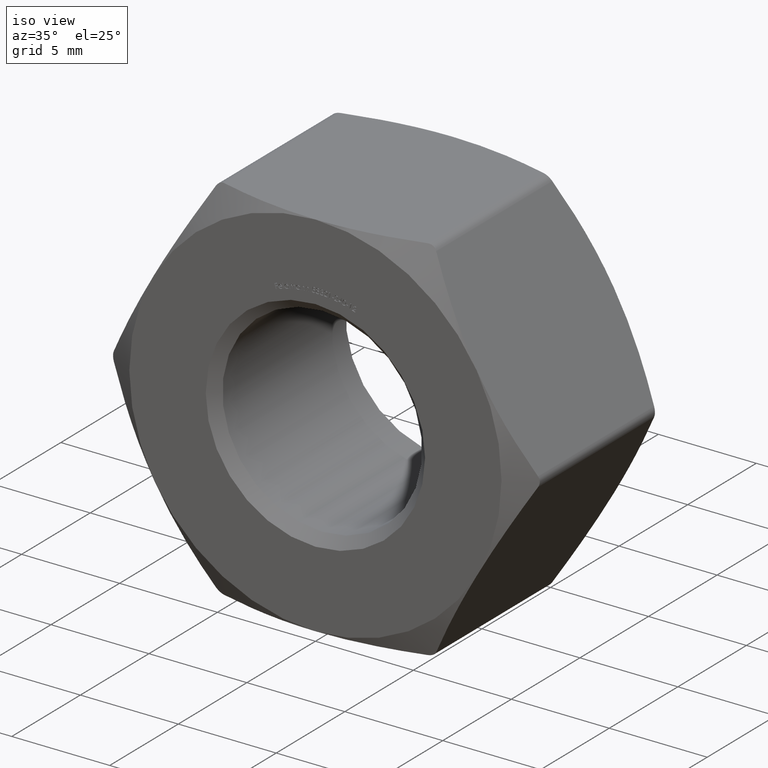
[diagram: clean part render]
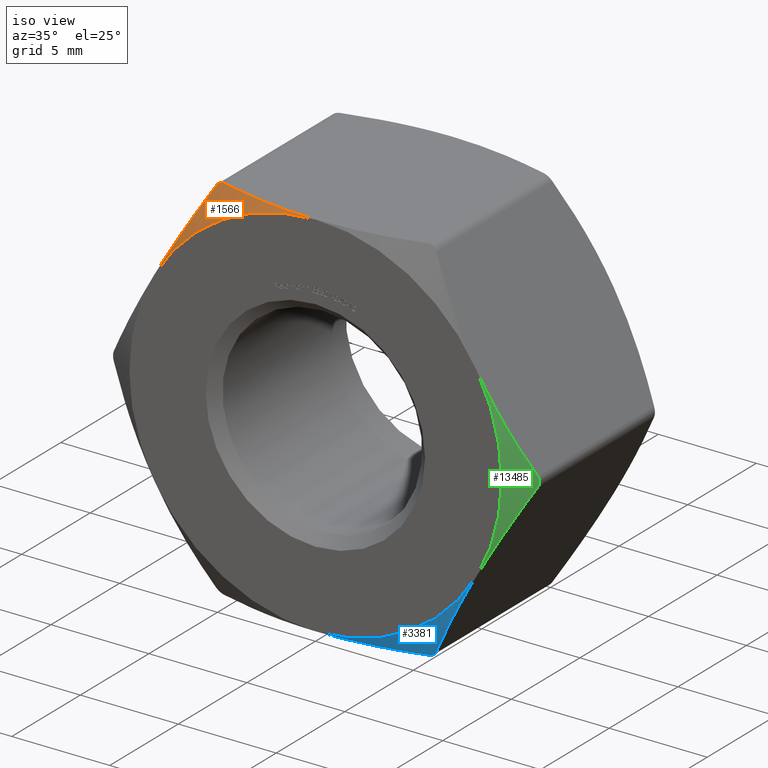
[diagram: same view with three faces highlighted in distinct colors, each labeled with its STEP entity id]
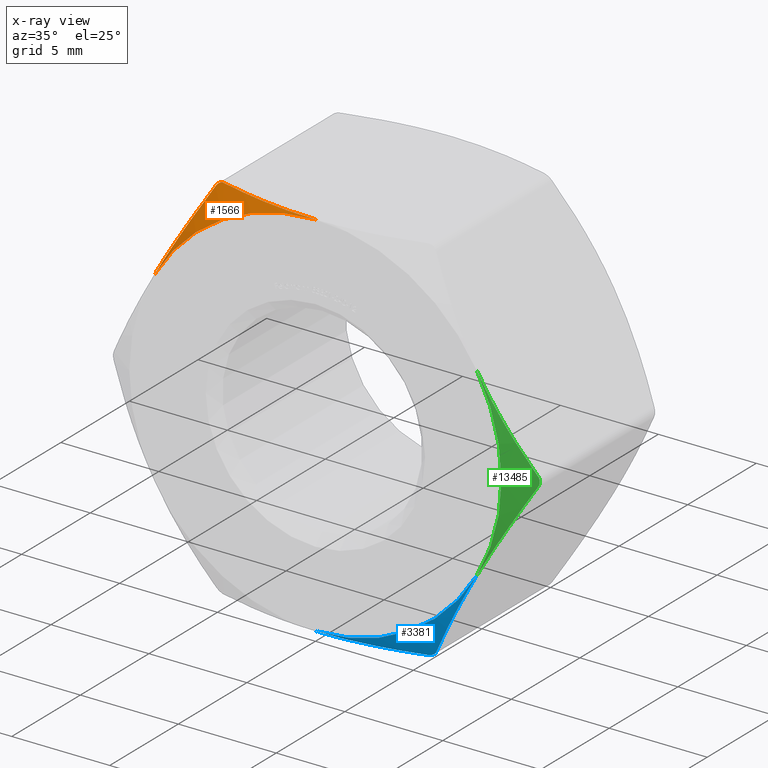
[diagram: x-ray of the same camera — body ghosted, the three highlighted faces saturated]
A machine part, iso view with three faces highlighted in distinct colors.
The next image is the same camera in x-ray (body ghosted, the three faces saturated) — at least one of them is partly hidden behind the body in this view.
Their STEP definitions:

[orange] entity #1566 — the highlighted conical surface has half-angle 60 deg.
#214 = CARTESIAN_POINT ( 'NONE',  ( -1.748548221912491700, -4.928786257910812400, 9.499999999999996400 ) ) ;
#232 = CARTESIAN_POINT ( 'NONE',  ( -0.8769579191401485300, -5.000000000000000000, 9.499999999999998200 ) ) ;
#449 = CARTESIAN_POINT ( 'NONE',  ( 5.178338499514328600E-017, -5.000000000000000000, 9.499999999999998200 ) ) ;
#1535 = CARTESIAN_POINT ( 'NONE',  ( -8.007001594286084200, -5.000000000000008900, 5.131466422411501900 ) ) ;
#1566 = ADVANCED_FACE ( 'NONE', ( #11044 ), #10679, .T. ) ;
#1750 = EDGE_CURVE ( 'NONE', #9294, #11237, #11599, .T. ) ;
#1920 = CARTESIAN_POINT ( 'NONE',  ( -5.196152422707283900, -4.233161112797591700, 9.499999999999998200 ) ) ;
#2402 = AXIS2_PLACEMENT_3D ( 'NONE', #6383, #8884, #12578 ) ;
#3521 = ORIENTED_EDGE ( 'NONE', *, *, #13459, .F. ) ;
#4820 = CARTESIAN_POINT ( 'NONE',  ( -5.629165124598850800, -4.233161112797772900, 9.249999999999998200 ) ) ;
#4986 = CARTESIAN_POINT ( 'NONE',  ( -4.348666152671947700, -4.467960792442869300, 9.499999999999998200 ) ) ;
#5289 = CARTESIAN_POINT ( 'NONE',  ( -8.227241335952166800, -5.000000000000000000, 4.749999999999998200 ) ) ;
#6383 = CARTESIAN_POINT ( 'NONE',  ( 5.178338499514328600E-017, -5.000000000000000000, 1.704137622190297200E-016 ) ) ;
#6407 = CARTESIAN_POINT ( 'NONE',  ( -6.053412761787225100, -4.468240341392040600, 8.515181537398685700 ) ) ;
#6511 = B_SPLINE_CURVE_WITH_KNOTS ( 'NONE', 3,
 ( #13488, #4986, #13431, #214, #232, #11094 ),
 .UNSPECIFIED., .F., .F.,
 ( 4, 2, 4 ),
 ( 0.01008431317107068100, 0.01270932973017897500, 0.01533434628928726800 ),
 .UNSPECIFIED. ) ;
#6653 = ORIENTED_EDGE ( 'NONE', *, *, #15265, .T. ) ;
#7194 = B_SPLINE_CURVE_WITH_KNOTS ( 'NONE', 3,
 ( #1920, #15194, #12824, #12771, #14010, #8200 ),
 .UNSPECIFIED., .F., .F.,
 ( 4, 2, 4 ),
 ( 6.327872022629088300E-016, 0.0002637781458277947700, 0.0005275562916549566800 ),
 .UNSPECIFIED. ) ;
#7322 = EDGE_LOOP ( 'NONE', ( #7391, #6653, #3521, #12066 ) ) ;
#7391 = ORIENTED_EDGE ( 'NONE', *, *, #8437, .F. ) ;
#7807 = CARTESIAN_POINT ( 'NONE',  ( -7.785726958241924400, -4.982053147081708200, 5.514725334466294100 ) ) ;
#8062 = AXIS2_PLACEMENT_3D ( 'NONE', #11844, #9518, #12109 ) ;
#8086 = B_SPLINE_CURVE_WITH_KNOTS ( 'NONE', 3,
 ( #13534, #1535, #7807, #13642, #14910, #12549, #6407, #13748 ),
 .UNSPECIFIED., .F., .F.,
 ( 4, 2, 2, 4 ),
 ( 0.005549985383765654100, 0.006857997360578059000, 0.008166009337390464600, 0.01078203329101527400 ),
 .UNSPECIFIED. ) ;
#8200 = CARTESIAN_POINT ( 'NONE',  ( -5.629165124598850800, -4.233161112797772900, 9.249999999999998200 ) ) ;
#8437 = EDGE_CURVE ( 'NONE', #15081, #9294, #6511, .T. ) ;
#8884 = DIRECTION ( 'NONE',  ( -0.0000000000000000000, -1.000000000000000000, -0.0000000000000000000 ) ) ;
#9294 = VERTEX_POINT ( 'NONE', #449 ) ;
#9518 = DIRECTION ( 'NONE',  ( -1.035667699902865700E-017, 1.000000000000000000, -0.0000000000000000000 ) ) ;
#9795 = VERTEX_POINT ( 'NONE', #4820 ) ;
#10011 = CARTESIAN_POINT ( 'NONE',  ( -5.196152422707283900, -4.233161112797591700, 9.499999999999998200 ) ) ;
#10679 = CONICAL_SURFACE ( 'NONE', #8062, 9.499999999999998200, 1.047197551196604300 ) ;
#11044 = FACE_OUTER_BOUND ( 'NONE', #7322, .T. ) ;
#11094 = CARTESIAN_POINT ( 'NONE',  ( 5.178338499514328600E-017, -5.000000000000000000, 9.499999999999998200 ) ) ;
#11237 = VERTEX_POINT ( 'NONE', #5289 ) ;
#11599 = CIRCLE ( 'NONE', #2402, 9.499999999999998200 ) ;
#11844 = CARTESIAN_POINT ( 'NONE',  ( 5.178338499514328600E-017, -5.000000000000000000, 0.0000000000000000000 ) ) ;
#12066 = ORIENTED_EDGE ( 'NONE', *, *, #1750, .F. ) ;
#12109 = DIRECTION ( 'NONE',  ( 1.000000000000000000, 0.0000000000000000000, 0.0000000000000000000 ) ) ;
#12549 = CARTESIAN_POINT ( 'NONE',  ( -6.481161992788941900, -4.661040693212942000, 7.774298136405196400 ) ) ;
#12578 = DIRECTION ( 'NONE',  ( 0.0000000000000000000, 0.0000000000000000000, 1.000000000000000000 ) ) ;
#12771 = CARTESIAN_POINT ( 'NONE',  ( -5.522094562399194800, -4.196108957237633800, 9.389258600500992800 ) ) ;
#12824 = CARTESIAN_POINT ( 'NONE',  ( -5.369432392636326800, -4.196196110277392100, 9.477215452927209700 ) ) ;
#13431 = CARTESIAN_POINT ( 'NONE',  ( -3.482435840627231100, -4.663065989375614800, 9.499999999999998200 ) ) ;
#13459 = EDGE_CURVE ( 'NONE', #11237, #9795, #8086, .T. ) ;
#13488 = CARTESIAN_POINT ( 'NONE',  ( -5.196152422707283900, -4.233161112797591700, 9.499999999999998200 ) ) ;
#13534 = CARTESIAN_POINT ( 'NONE',  ( -8.227241335952166800, -5.000000000000000000, 4.749999999999998200 ) ) ;
#13642 = CARTESIAN_POINT ( 'NONE',  ( -7.347778050468204600, -4.912405536657725900, 6.273275093849667500 ) ) ;
#13748 = CARTESIAN_POINT ( 'NONE',  ( -5.629165124598850800, -4.233161112797772900, 9.249999999999998200 ) ) ;
#14010 = CARTESIAN_POINT ( 'NONE',  ( -5.586216033881835400, -4.209362655883565700, 9.324390007260756600 ) ) ;
#14910 = CARTESIAN_POINT ( 'NONE',  ( -7.130196065325851200, -4.860768812073040100, 6.650138146927925000 ) ) ;
#15081 = VERTEX_POINT ( 'NONE', #10011 ) ;
#15194 = CARTESIAN_POINT ( 'NONE',  ( -5.282019346758962900, -4.209371315874076200, 9.499999999999998200 ) ) ;
#15265 = EDGE_CURVE ( 'NONE', #15081, #9795, #7194, .T. ) ;

[blue] entity #3381 — the highlighted conical surface has half-angle 60 deg.
#21 = CARTESIAN_POINT ( 'NONE',  ( 0.4385791114193118800, -4.999999999999997300, -9.500000000000001800 ) ) ;
#1066 = CARTESIAN_POINT ( 'NONE',  ( 5.522094562399019000, -4.196108957237600900, -9.389258600501161600 ) ) ;
#1115 = CARTESIAN_POINT ( 'NONE',  ( 3.502637132481560800, -4.659066489143094200, -9.500000000000001800 ) ) ;
#1182 = CARTESIAN_POINT ( 'NONE',  ( 7.347778050468204600, -4.912405536657726800, -6.273275093849672000 ) ) ;
#1221 = CARTESIAN_POINT ( 'NONE',  ( 1.760928236677264300, -4.912279427820715600, -9.500000000000001800 ) ) ;
#1518 = ORIENTED_EDGE ( 'NONE', *, *, #6767, .F. ) ;
#2113 = ORIENTED_EDGE ( 'NONE', *, *, #7267, .F. ) ;
#2190 = CARTESIAN_POINT ( 'NONE',  ( 5.629165124598847200, -4.233161112797772000, -9.250000000000001800 ) ) ;
#2287 = DIRECTION ( 'NONE',  ( 0.0000000000000000000, 0.0000000000000000000, 1.000000000000000000 ) ) ;
#2673 = B_SPLINE_CURVE_WITH_KNOTS ( 'NONE', 3,
 ( #10827, #12192, #1115, #9551, #1221, #14441, #21, #9754 ),
 .UNSPECIFIED., .F., .F.,
 ( 4, 2, 2, 4 ),
 ( 0.004320510210316343000, 0.006939413859408410900, 0.008248865683954444500, 0.009558317508500478000 ),
 .UNSPECIFIED. ) ;
#3381 = ADVANCED_FACE ( 'NONE', ( #9331 ), #14988, .T. ) ;
#3428 = DIRECTION ( 'NONE',  ( -0.0000000000000000000, -1.000000000000000000, -0.0000000000000000000 ) ) ;
#4541 = CARTESIAN_POINT ( 'NONE',  ( 5.178338499514328600E-017, -5.000000000000000000, 0.0000000000000000000 ) ) ;
#4587 = DIRECTION ( 'NONE',  ( -1.035667699902865700E-017, 1.000000000000000000, -0.0000000000000000000 ) ) ;
#4696 = CARTESIAN_POINT ( 'NONE',  ( 7.130196065325849400, -4.860768812073040100, -6.650138146927925900 ) ) ;
#5456 = CARTESIAN_POINT ( 'NONE',  ( 5.196152422706629400, -4.233161112797772000, -9.500000000000001800 ) ) ;
#5732 = DIRECTION ( 'NONE',  ( 1.000000000000000000, 0.0000000000000000000, 0.0000000000000000000 ) ) ;
#5985 = ORIENTED_EDGE ( 'NONE', *, *, #9427, .F. ) ;
#6370 = AXIS2_PLACEMENT_3D ( 'NONE', #11928, #3428, #2287 ) ;
#6767 = EDGE_CURVE ( 'NONE', #13174, #8818, #12258, .T. ) ;
#6962 = CARTESIAN_POINT ( 'NONE',  ( 5.282019346759056200, -4.209371315874231600, -9.500000000000000000 ) ) ;
#7138 = CARTESIAN_POINT ( 'NONE',  ( 6.481161992788939200, -4.661040693212940200, -7.774298136405198200 ) ) ;
#7267 = EDGE_CURVE ( 'NONE', #15198, #8534, #2673, .T. ) ;
#7550 = CIRCLE ( 'NONE', #6370, 9.499999999999998200 ) ;
#8166 = AXIS2_PLACEMENT_3D ( 'NONE', #4541, #4587, #5732 ) ;
#8183 = CARTESIAN_POINT ( 'NONE',  ( 8.227241335952165000, -5.000000000000000000, -4.750000000000000000 ) ) ;
#8534 = VERTEX_POINT ( 'NONE', #9035 ) ;
#8818 = VERTEX_POINT ( 'NONE', #12011 ) ;
#9035 = CARTESIAN_POINT ( 'NONE',  ( -1.450531213742016000E-015, -5.000000000000000000, -9.499999999999998200 ) ) ;
#9331 = FACE_OUTER_BOUND ( 'NONE', #11016, .T. ) ;
#9427 = EDGE_CURVE ( 'NONE', #8534, #13174, #7550, .T. ) ;
#9445 = CARTESIAN_POINT ( 'NONE',  ( 5.196152422706629400, -4.233161112797772000, -9.500000000000001800 ) ) ;
#9497 = CARTESIAN_POINT ( 'NONE',  ( 5.586216033881775900, -4.209362655883535500, -9.324390007260856100 ) ) ;
#9551 = CARTESIAN_POINT ( 'NONE',  ( 2.200295668405326300, -4.859992646378998400, -9.500000000000000000 ) ) ;
#9754 = CARTESIAN_POINT ( 'NONE',  ( -1.450531213742016000E-015, -5.000000000000000000, -9.499999999999998200 ) ) ;
#10633 = CARTESIAN_POINT ( 'NONE',  ( 7.785726958241924400, -4.982053147081707300, -5.514725334466295000 ) ) ;
#10827 = CARTESIAN_POINT ( 'NONE',  ( 5.196152422706629400, -4.233161112797772000, -9.500000000000001800 ) ) ;
#11016 = EDGE_LOOP ( 'NONE', ( #2113, #14051, #1518, #5985 ) ) ;
#11876 = CARTESIAN_POINT ( 'NONE',  ( 5.369432392635903100, -4.196196110277424100, -9.477215452927385500 ) ) ;
#11928 = CARTESIAN_POINT ( 'NONE',  ( 5.178338499514328600E-017, -5.000000000000000000, 1.704137622190297200E-016 ) ) ;
#12011 = CARTESIAN_POINT ( 'NONE',  ( 5.629165124598847200, -4.233161112797772000, -9.250000000000001800 ) ) ;
#12192 = CARTESIAN_POINT ( 'NONE',  ( 4.354865280869846700, -4.466243297580161800, -9.500000000000001800 ) ) ;
#12258 = B_SPLINE_CURVE_WITH_KNOTS ( 'NONE', 3,
 ( #15593, #13103, #10633, #1182, #4696, #7138, #13155, #13053 ),
 .UNSPECIFIED., .F., .F.,
 ( 4, 2, 2, 4 ),
 ( 0.005549985383765654100, 0.006857997360578059800, 0.008166009337390466400, 0.01078203329101527800 ),
 .UNSPECIFIED. ) ;
#12704 = EDGE_CURVE ( 'NONE', #15198, #8818, #14837, .T. ) ;
#13053 = CARTESIAN_POINT ( 'NONE',  ( 5.629165124598847200, -4.233161112797772000, -9.250000000000001800 ) ) ;
#13103 = CARTESIAN_POINT ( 'NONE',  ( 8.007001594286078800, -5.000000000000007100, -5.131466422411501900 ) ) ;
#13155 = CARTESIAN_POINT ( 'NONE',  ( 6.053412761787222400, -4.468240341392041500, -8.515181537398692800 ) ) ;
#13174 = VERTEX_POINT ( 'NONE', #8183 ) ;
#14051 = ORIENTED_EDGE ( 'NONE', *, *, #12704, .T. ) ;
#14441 = CARTESIAN_POINT ( 'NONE',  ( 0.8784862103107655700, -4.982381200358125800, -9.500000000000003600 ) ) ;
#14837 = B_SPLINE_CURVE_WITH_KNOTS ( 'NONE', 3,
 ( #9445, #6962, #11876, #1066, #9497, #2190 ),
 .UNSPECIFIED., .F., .F.,
 ( 4, 2, 4 ),
 ( 8.673617379884035500E-019, 0.0002637781458274809400, 0.0005275562916549610200 ),
 .UNSPECIFIED. ) ;
#14988 = CONICAL_SURFACE ( 'NONE', #8166, 9.499999999999998200, 1.047197551196604300 ) ;
#15198 = VERTEX_POINT ( 'NONE', #5456 ) ;
#15593 = CARTESIAN_POINT ( 'NONE',  ( 8.227241335952165000, -5.000000000000000000, -4.750000000000000000 ) ) ;

[green] entity #13485 — the highlighted conical surface has half-angle 60 deg.
#1048 = VERTEX_POINT ( 'NONE', #7820 ) ;
#1315 = CARTESIAN_POINT ( 'NONE',  ( 10.89222553569160500, -4.196196110277376200, -0.08854287053725080900 ) ) ;
#1696 = DIRECTION ( 'NONE',  ( 1.000000000000000000, 0.0000000000000000000, 0.0000000000000000000 ) ) ;
#1926 = CARTESIAN_POINT ( 'NONE',  ( 8.227241335952166800, -5.000000000000000000, 4.749999999999997300 ) ) ;
#2047 = CARTESIAN_POINT ( 'NONE',  ( 8.227241335952165000, -5.000000000000000000, -4.750000000000000000 ) ) ;
#2998 = CONICAL_SURFACE ( 'NONE', #7833, 9.499999999999998200, 1.047197551196604300 ) ;
#3008 = CARTESIAN_POINT ( 'NONE',  ( 8.447481077618256500, -5.000000000000006200, 4.368533577588494600 ) ) ;
#3983 = ORIENTED_EDGE ( 'NONE', *, *, #13922, .F. ) ;
#4351 = EDGE_CURVE ( 'NONE', #1048, #8650, #11274, .T. ) ;
#4398 = B_SPLINE_CURVE_WITH_KNOTS ( 'NONE', 3,
 ( #1926, #3008, #11387, #14973, #15201, #10298, #13758, #5356 ),
 .UNSPECIFIED., .F., .F.,
 ( 4, 2, 2, 4 ),
 ( 0.005549985383765653300, 0.006857997360578058100, 0.008166009337390462900, 0.01078203329101527100 ),
 .UNSPECIFIED. ) ;
#5076 = ORIENTED_EDGE ( 'NONE', *, *, #5390, .F. ) ;
#5078 = DIRECTION ( 'NONE',  ( -0.0000000000000000000, -1.000000000000000000, -0.0000000000000000000 ) ) ;
#5259 = B_SPLINE_CURVE_WITH_KNOTS ( 'NONE', 3,
 ( #15226, #12848, #15167, #14998, #11729, #2047 ),
 .UNSPECIFIED., .F., .F.,
 ( 4, 2, 4 ),
 ( 0.0002975922718325327800, 0.002923788827799093700, 0.005549985383765655000 ),
 .UNSPECIFIED. ) ;
#5356 = CARTESIAN_POINT ( 'NONE',  ( 10.82531754730548100, -4.233161112797772000, 0.2499999999999992500 ) ) ;
#5390 = EDGE_CURVE ( 'NONE', #1048, #13174, #5259, .T. ) ;
#5931 = EDGE_LOOP ( 'NONE', ( #5076, #13732, #13265, #3983 ) ) ;
#5934 = CARTESIAN_POINT ( 'NONE',  ( 10.86826663802246900, -4.209362655883580800, 0.1756099927392924500 ) ) ;
#7161 = CARTESIAN_POINT ( 'NONE',  ( 10.82531754730548100, -4.233161112797772000, 0.2499999999999992500 ) ) ;
#7648 = DIRECTION ( 'NONE',  ( -1.035667699902865700E-017, 1.000000000000000000, -0.0000000000000000000 ) ) ;
#7820 = CARTESIAN_POINT ( 'NONE',  ( 10.82531754730597800, -4.233161112797496600, -0.2499999999991389400 ) ) ;
#7833 = AXIS2_PLACEMENT_3D ( 'NONE', #14962, #7648, #1696 ) ;
#8183 = CARTESIAN_POINT ( 'NONE',  ( 8.227241335952165000, -5.000000000000000000, -4.750000000000000000 ) ) ;
#8650 = VERTEX_POINT ( 'NONE', #11434 ) ;
#9941 = DIRECTION ( 'NONE',  ( 8.881784197001252300E-016, 0.0000000000000000000, 1.000000000000000000 ) ) ;
#10298 = CARTESIAN_POINT ( 'NONE',  ( 9.973320679115392600, -4.661040693212941100, 1.725701863594801600 ) ) ;
#10811 = CARTESIAN_POINT ( 'NONE',  ( 10.86825100933162200, -4.209371315873995400, -0.1756370624258961100 ) ) ;
#11274 = B_SPLINE_CURVE_WITH_KNOTS ( 'NONE', 3,
 ( #14575, #10811, #1315, #13176, #5934, #7161 ),
 .UNSPECIFIED., .F., .F.,
 ( 4, 2, 4 ),
 ( 9.643985637592534500E-016, 0.0002637781458279587000, 0.0005275562916549530000 ),
 .UNSPECIFIED. ) ;
#11387 = CARTESIAN_POINT ( 'NONE',  ( 8.668755713662406500, -4.982053147081705500, 3.985274665533705000 ) ) ;
#11434 = CARTESIAN_POINT ( 'NONE',  ( 10.82531754730548100, -4.233161112797772000, 0.2499999999999992500 ) ) ;
#11729 = CARTESIAN_POINT ( 'NONE',  ( 8.669433656285479000, -5.000000000000006200, -3.984100434465928300 ) ) ;
#11851 = CIRCLE ( 'NONE', #11865, 9.499999999999998200 ) ;
#11865 = AXIS2_PLACEMENT_3D ( 'NONE', #12226, #5078, #9941 ) ;
#12026 = VERTEX_POINT ( 'NONE', #13942 ) ;
#12226 = CARTESIAN_POINT ( 'NONE',  ( 5.178338499514328600E-017, -5.000000000000000000, 1.704137622190297200E-016 ) ) ;
#12848 = CARTESIAN_POINT ( 'NONE',  ( 10.40005022359209800, -4.468805358379076300, -0.9865846114704192000 ) ) ;
#13004 = FACE_OUTER_BOUND ( 'NONE', #5931, .T. ) ;
#13174 = VERTEX_POINT ( 'NONE', #8183 ) ;
#13176 = CARTESIAN_POINT ( 'NONE',  ( 10.89238375193495000, -4.196108957237651500, 0.08764487288724133500 ) ) ;
#13265 = ORIENTED_EDGE ( 'NONE', *, *, #15636, .F. ) ;
#13485 = ADVANCED_FACE ( 'NONE', ( #13004 ), #2998, .T. ) ;
#13732 = ORIENTED_EDGE ( 'NONE', *, *, #4351, .T. ) ;
#13758 = CARTESIAN_POINT ( 'NONE',  ( 10.40106991011711000, -4.468240341392042400, 0.9848184626013111200 ) ) ;
#13922 = EDGE_CURVE ( 'NONE', #13174, #12026, #11851, .T. ) ;
#13942 = CARTESIAN_POINT ( 'NONE',  ( 8.227241335952166800, -5.000000000000000000, 4.749999999999997300 ) ) ;
#14575 = CARTESIAN_POINT ( 'NONE',  ( 10.82531754730597800, -4.233161112797496600, -0.2499999999991389400 ) ) ;
#14962 = CARTESIAN_POINT ( 'NONE',  ( 5.178338499514328600E-017, -5.000000000000000000, 0.0000000000000000000 ) ) ;
#14973 = CARTESIAN_POINT ( 'NONE',  ( 9.106704621436128000, -4.912405536657725900, 3.226724906150326300 ) ) ;
#14998 = CARTESIAN_POINT ( 'NONE',  ( 9.106430400612969900, -4.927662757294315900, -3.227199870548523600 ) ) ;
#15167 = CARTESIAN_POINT ( 'NONE',  ( 9.971711193546214600, -4.661682687220363200, -1.728489574374662200 ) ) ;
#15201 = CARTESIAN_POINT ( 'NONE',  ( 9.324286606578484200, -4.860768812073040100, 2.849861853072073200 ) ) ;
#15226 = CARTESIAN_POINT ( 'NONE',  ( 10.82531754730597800, -4.233161112797496600, -0.2499999999991389400 ) ) ;
#15636 = EDGE_CURVE ( 'NONE', #12026, #8650, #4398, .T. ) ;